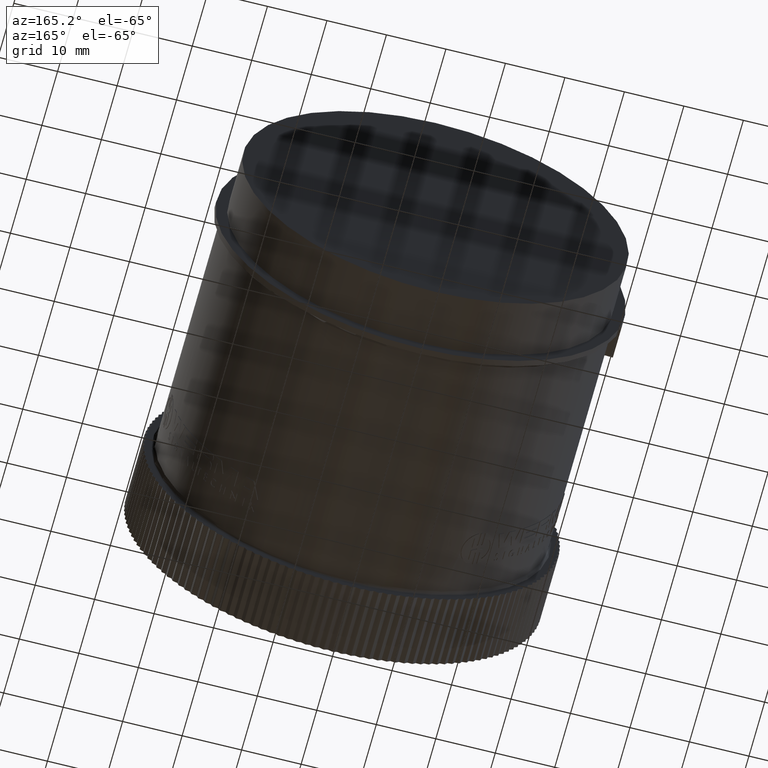
[diagram: clean part render]
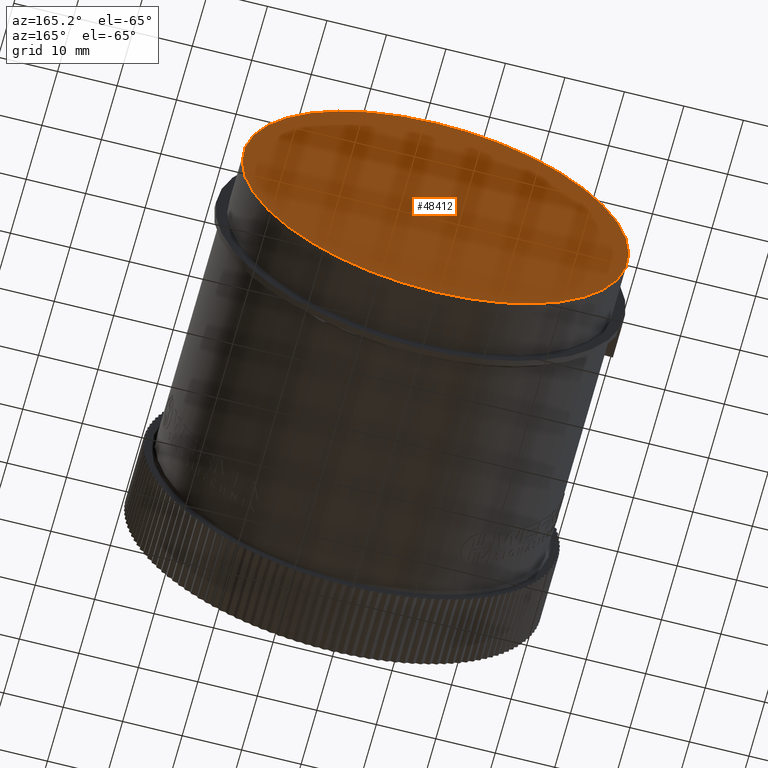
[diagram: same view with one face highlighted and labeled with its STEP entity id]
A machine part, auxiliary view. The second image highlights one B-rep face of the part: STEP entity #48412.
In plain terms, the highlighted planar face has unit normal (0, 1, 0).
Its self-contained STEP definition (entity closure, byte-faithful):
#2322 = CARTESIAN_POINT ( 'NONE',  ( 1.566969329617676700E-016, 2.578740157480315300, 1.279527559055118300 ) ) ;
#2573 = FACE_OUTER_BOUND ( 'NONE', #5827, .T. ) ;
#3806 = DIRECTION ( 'NONE',  ( 0.0000000000000000000, 1.000000000000000000, 0.0000000000000000000 ) ) ;
#5827 = EDGE_LOOP ( 'NONE', ( #38978, #7708 ) ) ;
#6517 = CIRCLE ( 'NONE', #48965, 1.279527559055118300 ) ;
#7000 = CARTESIAN_POINT ( 'NONE',  ( 0.0000000000000000000, 2.578740157480315300, -1.279527559055118300 ) ) ;
#7708 = ORIENTED_EDGE ( 'NONE', *, *, #10661, .F. ) ;
#10661 = EDGE_CURVE ( 'NONE', #43011, #14398, #30101, .T. ) ;
#13345 = AXIS2_PLACEMENT_3D ( 'NONE', #41386, #18048, #45273 ) ;
#14398 = VERTEX_POINT ( 'NONE', #7000 ) ;
#15090 = CARTESIAN_POINT ( 'NONE',  ( 0.0000000000000000000, 2.578740157480315300, 0.0000000000000000000 ) ) ;
#18048 = DIRECTION ( 'NONE',  ( 0.0000000000000000000, -1.000000000000000000, 0.0000000000000000000 ) ) ;
#19017 = DIRECTION ( 'NONE',  ( 0.0000000000000000000, 0.0000000000000000000, -1.000000000000000000 ) ) ;
#29790 = AXIS2_PLACEMENT_3D ( 'NONE', #46427, #3806, #30987 ) ;
#30101 = CIRCLE ( 'NONE', #13345, 1.279527559055118300 ) ;
#30987 = DIRECTION ( 'NONE',  ( 0.0000000000000000000, -0.0000000000000000000, 1.000000000000000000 ) ) ;
#38978 = ORIENTED_EDGE ( 'NONE', *, *, #45221, .F. ) ;
#41386 = CARTESIAN_POINT ( 'NONE',  ( 0.0000000000000000000, 2.578740157480315300, 0.0000000000000000000 ) ) ;
#42342 = DIRECTION ( 'NONE',  ( 0.0000000000000000000, -1.000000000000000000, 0.0000000000000000000 ) ) ;
#42522 = PLANE ( 'NONE',  #29790 ) ;
#43011 = VERTEX_POINT ( 'NONE', #2322 ) ;
#45221 = EDGE_CURVE ( 'NONE', #14398, #43011, #6517, .T. ) ;
#45273 = DIRECTION ( 'NONE',  ( 0.0000000000000000000, 0.0000000000000000000, -1.000000000000000000 ) ) ;
#46427 = CARTESIAN_POINT ( 'NONE',  ( 1.104330708661417400, 2.578740157480315300, 0.0000000000000000000 ) ) ;
#48412 = ADVANCED_FACE ( 'NONE', ( #2573 ), #42522, .T. ) ;
#48965 = AXIS2_PLACEMENT_3D ( 'NONE', #15090, #42342, #19017 ) ;